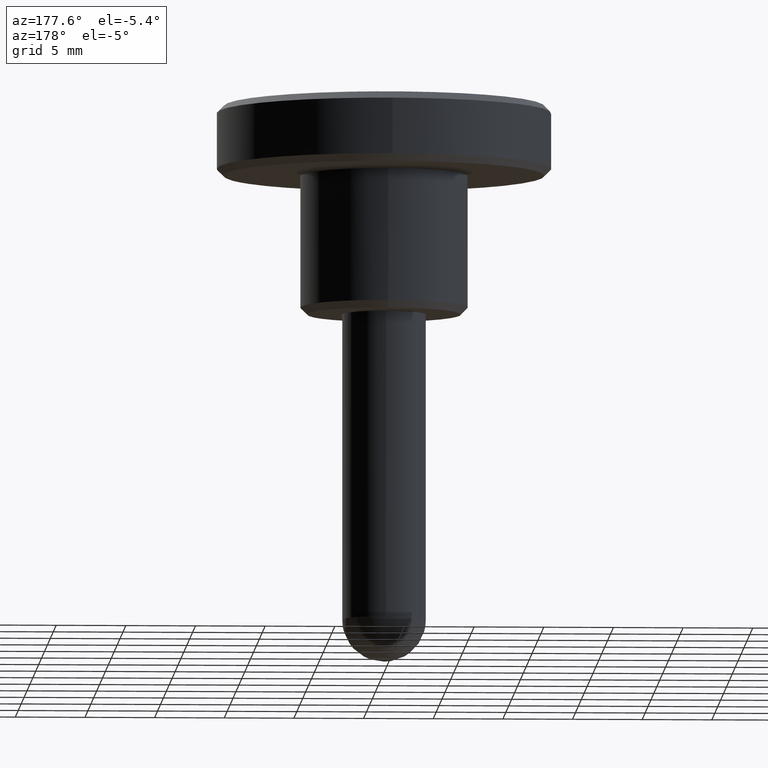
[diagram: clean part render]
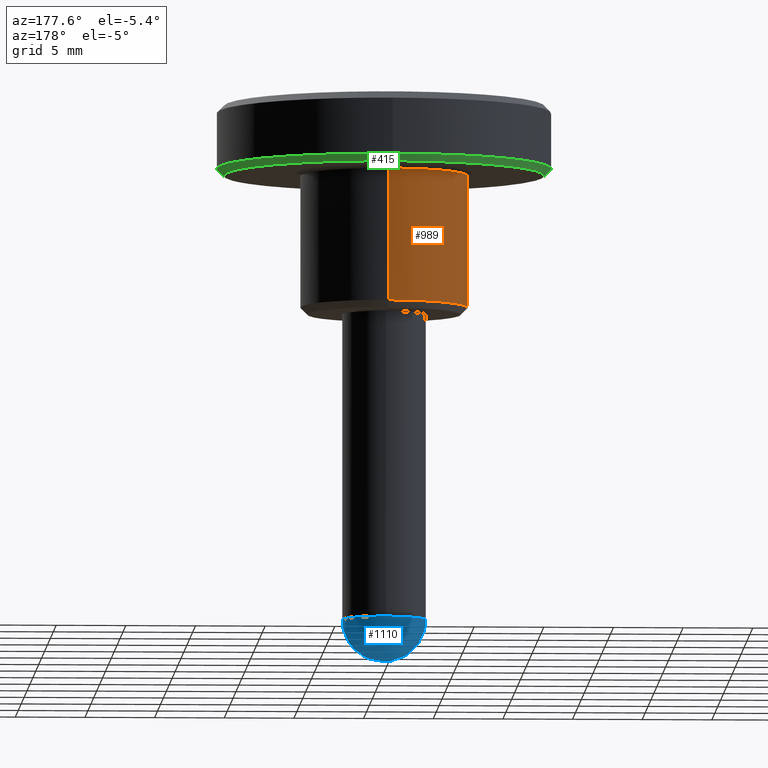
[diagram: same view with three faces highlighted in distinct colors, each labeled with its STEP entity id]
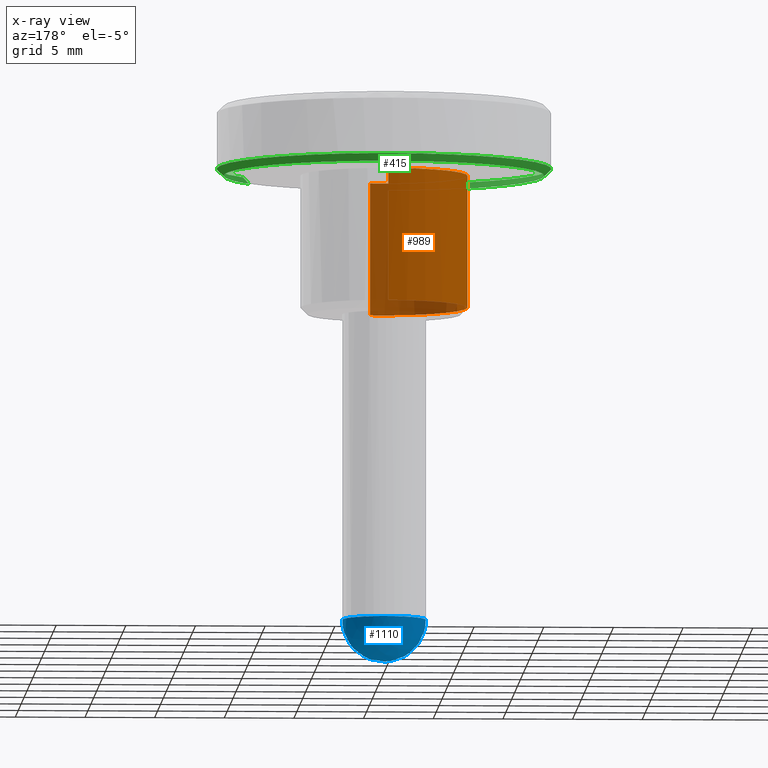
[diagram: x-ray of the same camera — body ghosted, the three highlighted faces saturated]
A machine part, auxiliary view with three faces highlighted in distinct colors.
The next image is the same camera in x-ray (body ghosted, the three faces saturated) — at least one of them is partly hidden behind the body in this view.
Their STEP definitions:

[orange] entity #989 — the highlighted face is a freeform B-spline surface patch.
#498=CARTESIAN_POINT('',(-2.425292591940817,-5.487982857434176,0.500000000001144));
#499=VERTEX_POINT('',#498);
#500=CARTESIAN_POINT('',(0.744759686369103,-5.953598324499980,0.499999999999945));
#501=VERTEX_POINT('',#500);
#502=CARTESIAN_POINT('',(-2.425292591940817,-5.487982857434177,0.500000000001144));
#503=CARTESIAN_POINT('',(-1.266693703526238,-6.0,0.499999999999945));
#504=CARTESIAN_POINT('',(0.0,-6.0,0.499999999999945));
#505=CARTESIAN_POINT('',(0.373825353413298,-6.0,0.499999999999945));
#506=CARTESIAN_POINT('',(0.744759686369103,-5.953598324499981,0.499999999999945));
#514=(BOUNDED_CURVE()B_SPLINE_CURVE(2,(#502,#503,#504,#505,#506),.UNSPECIFIED.,.F.,.U.)B_SPLINE_CURVE_WITH_KNOTS((3,2,3),(0.181361578459189,0.250000000000000,0.271473693119241),.UNSPECIFIED.)CURVE()GEOMETRIC_REPRESENTATION_ITEM()RATIONAL_B_SPLINE_CURVE((0.883326595751099,0.919585087122549,1.0,0.974842003609973,0.954005887971741))REPRESENTATION_ITEM(''));
#515=EDGE_CURVE('',#499,#501,#514,.T.);
#558=CARTESIAN_POINT('',(-0.052357932302264,5.999771549560601,0.499999999999668));
#559=VERTEX_POINT('',#558);
#616=CARTESIAN_POINT('',(-6.0,0.0,0.499999999999945));
#617=VERTEX_POINT('',#616);
#618=CARTESIAN_POINT('',(-6.0,0.0,0.499999999999945));
#619=CARTESIAN_POINT('',(-6.0,-3.908220015529379,0.499999999999945));
#620=CARTESIAN_POINT('',(-2.425292591940817,-5.487982857434177,0.500000000001144));
#628=(BOUNDED_CURVE()B_SPLINE_CURVE(2,(#618,#619,#620),.UNSPECIFIED.,.F.,.U.)B_SPLINE_CURVE_WITH_KNOTS((3,3),(0.0,0.181361578459189),.UNSPECIFIED.)CURVE()GEOMETRIC_REPRESENTATION_ITEM()RATIONAL_B_SPLINE_CURVE((1.0,0.787521694063999,0.883326595751099))REPRESENTATION_ITEM(''));
#629=EDGE_CURVE('',#617,#499,#628,.T.);
#631=CARTESIAN_POINT('',(-0.052357932302264,5.999771549560601,0.499999999999668));
#632=CARTESIAN_POINT('',(-6.0,5.947868533227037,0.499999999999945));
#633=CARTESIAN_POINT('',(-6.0,0.0,0.499999999999945));
#641=(BOUNDED_CURVE()B_SPLINE_CURVE(2,(#631,#632,#633),.UNSPECIFIED.,.F.,.U.)B_SPLINE_CURVE_WITH_KNOTS((3,3),(0.751539856736231,1.0),.UNSPECIFIED.)CURVE()GEOMETRIC_REPRESENTATION_ITEM()RATIONAL_B_SPLINE_CURVE((0.996414115114476,0.708910835570492,1.0))REPRESENTATION_ITEM(''));
#642=EDGE_CURVE('',#559,#617,#641,.T.);
#883=CARTESIAN_POINT('',(-0.052357672670020,5.999771551826802,10.0));
#884=VERTEX_POINT('',#883);
#885=CARTESIAN_POINT('',(-0.052357932302264,5.999771549560601,0.499999999999668));
#886=CARTESIAN_POINT('',(-0.052357672670020,5.999771551826802,10.0));
#887=QUASI_UNIFORM_CURVE('',1,(#885,#886),.UNSPECIFIED.,.F.,.U.);
#888=EDGE_CURVE('',#559,#884,#887,.T.);
#907=CARTESIAN_POINT('',(0.744768012501258,-5.953597282950446,10.0));
#908=VERTEX_POINT('',#907);
#922=CARTESIAN_POINT('',(0.744759686369103,-5.953598324499980,0.499999999999945));
#923=CARTESIAN_POINT('',(0.744768012501258,-5.953597282950446,10.0));
#924=QUASI_UNIFORM_CURVE('',1,(#922,#923),.UNSPECIFIED.,.F.,.U.);
#925=EDGE_CURVE('',#501,#908,#924,.T.);
#930=CARTESIAN_POINT('',(-0.052359212990243,5.999771538385026,0.262499999999943));
#931=CARTESIAN_POINT('',(-6.052130751375269,5.947412325394783,0.262499999999943));
#932=CARTESIAN_POINT('',(-5.999771538385026,-0.052359212990243,0.262499999999943));
#933=CARTESIAN_POINT('',(-5.947412325394783,-6.052130751375269,0.262499999999943));
#934=CARTESIAN_POINT('',(0.052359212990243,-5.999771538385026,0.262499999999943));
#935=CARTESIAN_POINT('',(0.399900953749042,-5.996738587561654,0.262499999999943));
#936=CARTESIAN_POINT('',(0.744768012478976,-5.953597282953231,0.262499999999943));
#937=CARTESIAN_POINT('',(-0.052359212990243,5.999771538385026,10.243437500000001));
#938=CARTESIAN_POINT('',(-6.052130751375269,5.947412325394783,10.243437500000004));
#939=CARTESIAN_POINT('',(-5.999771538385026,-0.052359212990243,10.243437500000001));
#940=CARTESIAN_POINT('',(-5.947412325394783,-6.052130751375269,10.243437500000004));
#941=CARTESIAN_POINT('',(0.052359212990243,-5.999771538385026,10.243437500000001));
#942=CARTESIAN_POINT('',(0.399900953749042,-5.996738587561654,10.243437500000002));
#943=CARTESIAN_POINT('',(0.744768012478976,-5.953597282953231,10.243437500000006));
#951=(BOUNDED_SURFACE()B_SPLINE_SURFACE(2,1,((#930,#937),(#931,#938),(#932,#939),(#933,#940),(#934,#941),(#935,#942),(#936,#943)),.UNSPECIFIED.,.F.,.F.,.U.)B_SPLINE_SURFACE_WITH_KNOTS((3,2,2,3),(2,2),(0.0,9.941125496954278,19.882250993908560,20.677541033664902),(0.0,9.980937500000064),.UNSPECIFIED.)GEOMETRIC_REPRESENTATION_ITEM()RATIONAL_B_SPLINE_SURFACE(((1.0,1.0),(0.707106781186548,0.707106781186548),(1.0,1.0),(0.707106781186548,0.707106781186548),(1.0,1.0),(0.976568542494924,0.976568542494924),(0.956886118190660,0.956886118190660)))REPRESENTATION_ITEM('')SURFACE());
#952=ORIENTED_EDGE('',*,*,#629,.T.);
#953=ORIENTED_EDGE('',*,*,#515,.T.);
#954=ORIENTED_EDGE('',*,*,#925,.T.);
#955=CARTESIAN_POINT('',(-6.0,0.0,10.0));
#956=VERTEX_POINT('',#955);
#957=CARTESIAN_POINT('',(0.744768012501258,-5.953597282950446,10.0));
#958=CARTESIAN_POINT('',(0.373829565223509,-6.0,9.999999999999998));
#959=CARTESIAN_POINT('',(0.0,-6.0,10.0));
#960=CARTESIAN_POINT('',(-6.0,-6.0,10.000000000000002));
#961=CARTESIAN_POINT('',(-6.0,0.0,10.0));
#969=(BOUNDED_CURVE()B_SPLINE_CURVE(2,(#957,#958,#959,#960,#961),.UNSPECIFIED.,.F.,.U.)B_SPLINE_CURVE_WITH_KNOTS((3,2,3),(0.728526071028036,0.750000000000000,1.0),.UNSPECIFIED.)CURVE()GEOMETRIC_REPRESENTATION_ITEM()RATIONAL_B_SPLINE_CURVE((0.954005430272269,0.974841727291321,1.0,0.707106781186548,1.0))REPRESENTATION_ITEM(''));
#970=EDGE_CURVE('',#908,#956,#969,.T.);
#971=ORIENTED_EDGE('',*,*,#970,.T.);
#972=CARTESIAN_POINT('',(-6.0,0.0,10.0));
#973=CARTESIAN_POINT('',(-6.0,5.947868790623056,9.999999999999998));
#974=CARTESIAN_POINT('',(-0.052357672670020,5.999771551826802,10.0));
#982=(BOUNDED_CURVE()B_SPLINE_CURVE(2,(#972,#973,#974),.UNSPECIFIED.,.F.,.U.)B_SPLINE_CURVE_WITH_KNOTS((3,3),(0.0,0.248460150886118),.UNSPECIFIED.)CURVE()GEOMETRIC_REPRESENTATION_ITEM()RATIONAL_B_SPLINE_CURVE((1.0,0.708910826640356,0.996414132754732))REPRESENTATION_ITEM(''));
#983=EDGE_CURVE('',#956,#884,#982,.T.);
#984=ORIENTED_EDGE('',*,*,#983,.T.);
#985=ORIENTED_EDGE('',*,*,#888,.F.);
#986=ORIENTED_EDGE('',*,*,#642,.T.);
#987=EDGE_LOOP('',(#952,#953,#954,#971,#984,#985,#986));
#988=FACE_OUTER_BOUND('',#987,.T.);
#989=ADVANCED_FACE('',(#988),#951,.T.);

[blue] entity #1110 — the highlighted face is a freeform B-spline surface patch.
#695=CARTESIAN_POINT('',(0.372384006280671,-2.976798641471465,-22.0));
#696=VERTEX_POINT('',#695);
#697=CARTESIAN_POINT('',(3.0,0.0,-22.0));
#698=VERTEX_POINT('',#697);
#699=CARTESIAN_POINT('',(0.372384006280671,-2.976798641471465,-21.999999999999996));
#700=CARTESIAN_POINT('',(3.0,-2.648095800376845,-22.000000000000004));
#701=CARTESIAN_POINT('',(3.0,0.0,-22.0));
#709=(BOUNDED_CURVE()B_SPLINE_CURVE(2,(#699,#700,#701),.UNSPECIFIED.,.F.,.U.)B_SPLINE_CURVE_WITH_KNOTS((3,3),(0.771473928975367,1.0),.UNSPECIFIED.)CURVE()GEOMETRIC_REPRESENTATION_ITEM()RATIONAL_B_SPLINE_CURVE((0.954005430265663,0.732265053899215,1.0))REPRESENTATION_ITEM(''));
#710=EDGE_CURVE('',#696,#698,#709,.T.);
#712=CARTESIAN_POINT('',(-0.026179606549015,2.999885769192043,-22.0));
#713=VERTEX_POINT('',#712);
#714=CARTESIAN_POINT('',(3.0,0.0,-22.0));
#715=CARTESIAN_POINT('',(3.0,3.0,-22.000000000000007));
#716=CARTESIAN_POINT('',(0.0,3.0,-22.0));
#717=CARTESIAN_POINT('',(-0.013090052516001,3.0,-22.0));
#718=CARTESIAN_POINT('',(-0.026179606549015,2.999885769192043,-22.0));
#726=(BOUNDED_CURVE()B_SPLINE_CURVE(2,(#714,#715,#716,#717,#718),.UNSPECIFIED.,.F.,.U.)B_SPLINE_CURVE_WITH_KNOTS((3,2,3),(0.0,0.250000000000000,0.251539894341316),.UNSPECIFIED.)CURVE()GEOMETRIC_REPRESENTATION_ITEM()RATIONAL_B_SPLINE_CURVE((1.0,0.707106781186548,1.0,0.998195901558957,0.996414028085759))REPRESENTATION_ITEM(''));
#727=EDGE_CURVE('',#698,#713,#726,.T.);
#798=CARTESIAN_POINT('',(-3.0,0.0,-22.0));
#799=VERTEX_POINT('',#798);
#800=CARTESIAN_POINT('',(-3.0,0.0,-22.0));
#801=CARTESIAN_POINT('',(-3.0,-3.0,-22.000000000000007));
#802=CARTESIAN_POINT('',(0.0,-3.0,-22.0));
#803=CARTESIAN_POINT('',(0.186914782642149,-3.000000000000000,-22.000000000000004));
#804=CARTESIAN_POINT('',(0.372384006280671,-2.976798641471464,-22.000000000000004));
#812=(BOUNDED_CURVE()B_SPLINE_CURVE(2,(#800,#801,#802,#803,#804),.UNSPECIFIED.,.F.,.U.)B_SPLINE_CURVE_WITH_KNOTS((3,2,3),(0.500000000000000,0.750000000000000,0.771473928975368),.UNSPECIFIED.)CURVE()GEOMETRIC_REPRESENTATION_ITEM()RATIONAL_B_SPLINE_CURVE((1.0,0.707106781186548,1.0,0.974841727287333,0.954005430265663))REPRESENTATION_ITEM(''));
#813=EDGE_CURVE('',#799,#696,#812,.T.);
#847=CARTESIAN_POINT('',(-0.026179606549015,2.999885769192043,-21.999999999999996));
#848=CARTESIAN_POINT('',(-3.000000000000001,2.973933631678077,-21.999999999999996));
#849=CARTESIAN_POINT('',(-3.0,0.0,-22.0));
#857=(BOUNDED_CURVE()B_SPLINE_CURVE(2,(#847,#848,#849),.UNSPECIFIED.,.F.,.U.)B_SPLINE_CURVE_WITH_KNOTS((3,3),(0.251539894341316,0.500000000000000),.UNSPECIFIED.)CURVE()GEOMETRIC_REPRESENTATION_ITEM()RATIONAL_B_SPLINE_CURVE((0.996414028085759,0.708910879627590,1.0))REPRESENTATION_ITEM(''));
#858=EDGE_CURVE('',#713,#799,#857,.T.);
#1060=CARTESIAN_POINT('',(-1.966516590319030,1.966516590319032,-20.874999999999989));
#1061=CARTESIAN_POINT('',(-1.780996157270066,2.374661543026756,-21.264150943396217));
#1062=CARTESIAN_POINT('',(-0.749149177264393,2.996596709057575,-21.857142857142851));
#1063=CARTESIAN_POINT('',(0.749149177264394,2.996596709057575,-21.857142857142851));
#1064=CARTESIAN_POINT('',(1.780996157270068,2.374661543026756,-21.264150943396224));
#1065=CARTESIAN_POINT('',(1.966516590319033,1.966516590319032,-20.874999999999993));
#1066=CARTESIAN_POINT('',(-2.374661543026755,1.780996157270067,-21.264150943396217));
#1067=CARTESIAN_POINT('',(-2.247447531793181,2.247447531793181,-21.857142857142847));
#1068=CARTESIAN_POINT('',(-1.014976304680793,3.044928914042377,-22.870967741935477));
#1069=CARTESIAN_POINT('',(1.014976304680791,3.044928914042377,-22.870967741935477));
#1070=CARTESIAN_POINT('',(2.247447531793181,2.247447531793181,-21.857142857142851));
#1071=CARTESIAN_POINT('',(2.374661543026757,1.780996157270067,-21.264150943396224));
#1072=CARTESIAN_POINT('',(-2.996596709057575,0.749149177264394,-21.857142857142847));
#1073=CARTESIAN_POINT('',(-3.044928914042377,1.014976304680792,-22.870967741935473));
#1074=CARTESIAN_POINT('',(-1.573213272255234,1.573213272255230,-25.0));
#1075=CARTESIAN_POINT('',(1.573213272255226,1.573213272255230,-25.0));
#1076=CARTESIAN_POINT('',(3.044928914042375,1.014976304680792,-22.870967741935477));
#1077=CARTESIAN_POINT('',(2.996596709057575,0.749149177264394,-21.857142857142851));
#1078=CARTESIAN_POINT('',(-2.996596709057575,-0.749149177264394,-21.857142857142847));
#1079=CARTESIAN_POINT('',(-3.044928914042377,-1.014976304680792,-22.870967741935473));
#1080=CARTESIAN_POINT('',(-1.573213272255234,-1.573213272255230,-25.0));
#1081=CARTESIAN_POINT('',(1.573213272255226,-1.573213272255230,-25.0));
#1082=CARTESIAN_POINT('',(3.044928914042375,-1.014976304680792,-22.870967741935477));
#1083=CARTESIAN_POINT('',(2.996596709057575,-0.749149177264394,-21.857142857142851));
#1084=CARTESIAN_POINT('',(-2.374661543026755,-1.780996157270067,-21.264150943396217));
#1085=CARTESIAN_POINT('',(-2.247447531793181,-2.247447531793181,-21.857142857142847));
#1086=CARTESIAN_POINT('',(-1.014976304680793,-3.044928914042377,-22.870967741935477));
#1087=CARTESIAN_POINT('',(1.014976304680791,-3.044928914042377,-22.870967741935477));
#1088=CARTESIAN_POINT('',(2.247447531793181,-2.247447531793181,-21.857142857142851));
#1089=CARTESIAN_POINT('',(2.374661543026757,-1.780996157270067,-21.264150943396224));
#1090=CARTESIAN_POINT('',(-1.966516590319030,-1.966516590319032,-20.874999999999989));
#1091=CARTESIAN_POINT('',(-1.780996157270066,-2.374661543026756,-21.264150943396217));
#1092=CARTESIAN_POINT('',(-0.749149177264393,-2.996596709057575,-21.857142857142851));
#1093=CARTESIAN_POINT('',(0.749149177264394,-2.996596709057575,-21.857142857142851));
#1094=CARTESIAN_POINT('',(1.780996157270068,-2.374661543026756,-21.264150943396224));
#1095=CARTESIAN_POINT('',(1.966516590319033,-1.966516590319032,-20.874999999999993));
#1103=(BOUNDED_SURFACE()B_SPLINE_SURFACE(2,2,((#1060,#1066,#1072,#1078,#1084,#1090),(#1061,#1067,#1073,#1079,#1085,#1091),(#1062,#1068,#1074,#1080,#1086,#1092),(#1063,#1069,#1075,#1081,#1087,#1093),(#1064,#1070,#1076,#1082,#1088,#1094),(#1065,#1071,#1077,#1083,#1089,#1095)),.UNSPECIFIED.,.F.,.F.,.U.)B_SPLINE_SURFACE_WITH_KNOTS((3,1,1,1,3),(3,1,1,1,3),(0.0,2.766089269899302,5.532178539798604,8.298267809697906,11.064357079597210),(0.0,2.766089269899300,5.532178539798601,8.298267809697901,11.064357079597199),.UNSPECIFIED.)GEOMETRIC_REPRESENTATION_ITEM()RATIONAL_B_SPLINE_SURFACE(((3.200000000000009,2.650000000000007,2.100000000000004,2.100000000000004,2.650000000000007,3.200000000000009),(2.650000000000007,2.100000000000004,1.550000000000002,1.550000000000002,2.100000000000004,2.650000000000007),(2.100000000000004,1.550000000000002,1.0,1.0,1.550000000000002,2.100000000000004),(2.100000000000004,1.550000000000002,1.0,1.0,1.550000000000002,2.100000000000004),(2.650000000000007,2.100000000000004,1.550000000000002,1.550000000000002,2.100000000000004,2.650000000000007),(3.200000000000009,2.650000000000007,2.100000000000004,2.100000000000004,2.650000000000007,3.200000000000009)))REPRESENTATION_ITEM('')SURFACE());
#1104=ORIENTED_EDGE('',*,*,#710,.F.);
#1105=ORIENTED_EDGE('',*,*,#813,.F.);
#1106=ORIENTED_EDGE('',*,*,#858,.F.);
#1107=ORIENTED_EDGE('',*,*,#727,.F.);
#1108=EDGE_LOOP('',(#1104,#1105,#1106,#1107));
#1109=FACE_OUTER_BOUND('',#1108,.T.);
#1110=ADVANCED_FACE('',(#1109),#1103,.T.);

[green] entity #415 — the highlighted face is a freeform B-spline surface patch.
#260=CARTESIAN_POINT('',(9.406724469765697,-6.593647776452057,9.987500000000001));
#261=CARTESIAN_POINT('',(11.519179152623552,-3.579947343821037,9.987499999999999));
#262=CARTESIAN_POINT('',(11.487062591199660,0.100246076537570,9.987499999999999));
#263=CARTESIAN_POINT('',(11.386816514662092,11.587308667737231,9.987499999999999));
#264=CARTESIAN_POINT('',(-0.100246076537570,11.487062591199660,9.987499999999999));
#265=CARTESIAN_POINT('',(-11.587308667737231,11.386816514662092,9.987499999999999));
#266=CARTESIAN_POINT('',(-11.487062591199660,-0.100246076537570,9.987499999999999));
#267=CARTESIAN_POINT('',(-11.386816514662092,-11.587308667737231,9.987499999999999));
#268=CARTESIAN_POINT('',(0.100246076537570,-11.487062591199660,9.987499999999999));
#269=CARTESIAN_POINT('',(9.836885074599064,-6.895169047186953,10.512812500000004));
#270=CARTESIAN_POINT('',(12.045940310282912,-3.743654946785199,10.512812500000003));
#271=CARTESIAN_POINT('',(12.012355088909260,0.104830234716559,10.512812500000001));
#272=CARTESIAN_POINT('',(11.907524854192697,12.117185323625815,10.512812500000003));
#273=CARTESIAN_POINT('',(-0.104830234716559,12.012355088909260,10.512812500000001));
#274=CARTESIAN_POINT('',(-12.117185323625815,11.907524854192697,10.512812500000003));
#275=CARTESIAN_POINT('',(-12.012355088909260,-0.104830234716559,10.512812500000001));
#276=CARTESIAN_POINT('',(-11.907524854192697,-12.117185323625815,10.512812500000003));
#277=CARTESIAN_POINT('',(0.104830234716559,-12.012355088909260,10.512812500000001));
#285=(BOUNDED_SURFACE()B_SPLINE_SURFACE(2,1,((#260,#269),(#261,#270),(#262,#271),(#263,#272),(#264,#273),(#265,#274),(#266,#275),(#267,#276),(#268,#277)),.UNSPECIFIED.,.F.,.F.,.U.)B_SPLINE_SURFACE_WITH_KNOTS((3,2,2,2,3),(2,2),(0.0,7.961391775592033,27.864871214572119,47.768350653552197,67.671830092532289),(0.0,1.0),.UNSPECIFIED.)GEOMETRIC_REPRESENTATION_ITEM()RATIONAL_B_SPLINE_SURFACE(((0.859411254969543,0.859411254969543),(0.882842712474619,0.882842712474619),(1.0,1.0),(0.707106781186548,0.707106781186548),(1.0,1.0),(0.707106781186548,0.707106781186548),(1.0,1.0),(0.707106781186548,0.707106781186548),(1.0,1.0)))REPRESENTATION_ITEM('')SURFACE());
#286=CARTESIAN_POINT('',(11.500000000000000,0.0,10.0));
#287=VERTEX_POINT('',#286);
#288=CARTESIAN_POINT('',(9.416960296167627,-6.600822583619035,10.000000000000551));
#289=VERTEX_POINT('',#288);
#290=CARTESIAN_POINT('',(11.500000000000000,0.0,10.0));
#291=CARTESIAN_POINT('',(11.499999999999998,-3.629086570751550,10.0));
#292=CARTESIAN_POINT('',(9.416960296167627,-6.600822583619035,10.000000000000551));
#300=(BOUNDED_CURVE()B_SPLINE_CURVE(2,(#290,#291,#292),.UNSPECIFIED.,.F.,.U.)B_SPLINE_CURVE_WITH_KNOTS((3,3),(0.0,0.098673726203213),.UNSPECIFIED.)CURVE()GEOMETRIC_REPRESENTATION_ITEM()RATIONAL_B_SPLINE_CURVE((1.0,0.884396538880094,0.860049271925704))REPRESENTATION_ITEM(''));
#301=EDGE_CURVE('',#287,#289,#300,.T.);
#302=ORIENTED_EDGE('',*,*,#301,.F.);
#303=CARTESIAN_POINT('',(-11.500000000000000,0.0,10.0));
#304=VERTEX_POINT('',#303);
#305=CARTESIAN_POINT('',(-11.500000000000000,0.0,10.0));
#306=CARTESIAN_POINT('',(-11.500000000000000,11.500000000000000,10.000000000000002));
#307=CARTESIAN_POINT('',(0.0,11.500000000000000,10.0));
#308=CARTESIAN_POINT('',(11.500000000000000,11.500000000000000,10.000000000000002));
#309=CARTESIAN_POINT('',(11.500000000000000,0.0,10.0));
#317=(BOUNDED_CURVE()B_SPLINE_CURVE(2,(#305,#306,#307,#308,#309),.UNSPECIFIED.,.F.,.U.)B_SPLINE_CURVE_WITH_KNOTS((3,2,3),(0.500000000000000,0.750000000000000,1.0),.UNSPECIFIED.)CURVE()GEOMETRIC_REPRESENTATION_ITEM()RATIONAL_B_SPLINE_CURVE((1.0,0.707106781186548,1.0,0.707106781186548,1.0))REPRESENTATION_ITEM(''));
#318=EDGE_CURVE('',#304,#287,#317,.T.);
#319=ORIENTED_EDGE('',*,*,#318,.F.);
#320=CARTESIAN_POINT('',(0.100355158271585,-11.499562115243091,10.000000000005480));
#321=VERTEX_POINT('',#320);
#322=CARTESIAN_POINT('',(0.100355158271585,-11.499562115243096,10.000000000005475));
#323=CARTESIAN_POINT('',(0.050178534478308,-11.500000000000000,10.0));
#324=CARTESIAN_POINT('',(0.0,-11.500000000000000,10.0));
#325=CARTESIAN_POINT('',(-11.500000000000000,-11.500000000000000,10.000000000000002));
#326=CARTESIAN_POINT('',(-11.500000000000000,0.0,10.0));
#334=(BOUNDED_CURVE()B_SPLINE_CURVE(2,(#322,#323,#324,#325,#326),.UNSPECIFIED.,.F.,.U.)B_SPLINE_CURVE_WITH_KNOTS((3,2,3),(0.248460105663780,0.250000000000000,0.500000000000000),.UNSPECIFIED.)CURVE()GEOMETRIC_REPRESENTATION_ITEM()RATIONAL_B_SPLINE_CURVE((0.996414028097553,0.998195901564928,1.0,0.707106781186548,1.0))REPRESENTATION_ITEM(''));
#335=EDGE_CURVE('',#321,#304,#334,.T.);
#336=ORIENTED_EDGE('',*,*,#335,.F.);
#337=CARTESIAN_POINT('',(0.104718425980816,-11.999543076770079,10.500000000000060));
#338=VERTEX_POINT('',#337);
#339=CARTESIAN_POINT('',(0.100355158271585,-11.499562115243091,10.000000000005480));
#340=CARTESIAN_POINT('',(0.104718425980816,-11.999543076770079,10.500000000000060));
#341=QUASI_UNIFORM_CURVE('',1,(#339,#340),.UNSPECIFIED.,.F.,.U.);
#342=EDGE_CURVE('',#321,#338,#341,.T.);
#343=ORIENTED_EDGE('',*,*,#342,.T.);
#344=CARTESIAN_POINT('',(-12.0,0.0,10.500000000000000));
#345=VERTEX_POINT('',#344);
#346=CARTESIAN_POINT('',(-12.0,0.0,10.500000000000000));
#347=CARTESIAN_POINT('',(-12.0,-12.0,10.500000000000002));
#348=CARTESIAN_POINT('',(0.0,-12.0,10.500000000000000));
#349=CARTESIAN_POINT('',(0.052360209848746,-11.999999999999998,10.500000000000002));
#350=CARTESIAN_POINT('',(0.104718425980816,-11.999543076770085,10.500000000000064));
#358=(BOUNDED_CURVE()B_SPLINE_CURVE(2,(#346,#347,#348,#349,#350),.UNSPECIFIED.,.F.,.U.)B_SPLINE_CURVE_WITH_KNOTS((3,2,3),(0.0,0.250000000000000,0.251539894334997),.UNSPECIFIED.)CURVE()GEOMETRIC_REPRESENTATION_ITEM()RATIONAL_B_SPLINE_CURVE((1.0,0.707106781186548,1.0,0.998195901566361,0.996414028100383))REPRESENTATION_ITEM(''));
#359=EDGE_CURVE('',#345,#338,#358,.T.);
#360=ORIENTED_EDGE('',*,*,#359,.F.);
#361=CARTESIAN_POINT('',(-0.104706701761851,11.999543179074310,10.500000000000000));
#362=VERTEX_POINT('',#361);
#363=CARTESIAN_POINT('',(-0.104706701761851,11.999543179074310,10.499999999999996));
#364=CARTESIAN_POINT('',(-12.0,11.895746150379777,10.500000000000000));
#365=CARTESIAN_POINT('',(-12.0,0.0,10.500000000000000));
#373=(BOUNDED_CURVE()B_SPLINE_CURVE(2,(#363,#364,#365),.UNSPECIFIED.,.F.,.U.)B_SPLINE_CURVE_WITH_KNOTS((3,3),(0.751539722233697,1.0),.UNSPECIFIED.)CURVE()GEOMETRIC_REPRESENTATION_ITEM()RATIONAL_B_SPLINE_CURVE((0.996414426391288,0.708910677990972,1.0))REPRESENTATION_ITEM(''));
#374=EDGE_CURVE('',#362,#345,#373,.T.);
#375=ORIENTED_EDGE('',*,*,#374,.F.);
#376=CARTESIAN_POINT('',(12.0,0.0,10.500000000000000));
#377=VERTEX_POINT('',#376);
#378=CARTESIAN_POINT('',(12.0,0.0,10.500000000000000));
#379=CARTESIAN_POINT('',(12.0,12.0,10.500000000000002));
#380=CARTESIAN_POINT('',(0.0,12.0,10.500000000000000));
#381=CARTESIAN_POINT('',(-0.052354347404331,12.000000000000002,10.500000000000005));
#382=CARTESIAN_POINT('',(-0.104706701761851,11.999543179074310,10.499999999999996));
#390=(BOUNDED_CURVE()B_SPLINE_CURVE(2,(#378,#379,#380,#381,#382),.UNSPECIFIED.,.F.,.U.)B_SPLINE_CURVE_WITH_KNOTS((3,2,3),(0.500000000000000,0.750000000000000,0.751539722233697),.UNSPECIFIED.)CURVE()GEOMETRIC_REPRESENTATION_ITEM()RATIONAL_B_SPLINE_CURVE((1.0,0.707106781186548,1.0,0.998196103195576,0.996414426391288))REPRESENTATION_ITEM(''));
#391=EDGE_CURVE('',#377,#362,#390,.T.);
#392=ORIENTED_EDGE('',*,*,#391,.F.);
#393=CARTESIAN_POINT('',(9.826393352523558,-6.887814869862043,10.500000000000520));
#394=VERTEX_POINT('',#393);
#395=CARTESIAN_POINT('',(9.826393352523558,-6.887814869862043,10.500000000000522));
#396=CARTESIAN_POINT('',(11.999999999999996,-3.786872943391239,10.500000000000000));
#397=CARTESIAN_POINT('',(12.0,0.0,10.500000000000000));
#405=(BOUNDED_CURVE()B_SPLINE_CURVE(2,(#395,#396,#397),.UNSPECIFIED.,.F.,.U.)B_SPLINE_CURVE_WITH_KNOTS((3,3),(0.401326273796825,0.500000000000000),.UNSPECIFIED.)CURVE()GEOMETRIC_REPRESENTATION_ITEM()RATIONAL_B_SPLINE_CURVE((0.860049271925723,0.884396538880139,1.0))REPRESENTATION_ITEM(''));
#406=EDGE_CURVE('',#394,#377,#405,.T.);
#407=ORIENTED_EDGE('',*,*,#406,.F.);
#408=CARTESIAN_POINT('',(9.416960296167627,-6.600822583619035,10.000000000000551));
#409=CARTESIAN_POINT('',(9.826393352523558,-6.887814869862043,10.500000000000520));
#410=QUASI_UNIFORM_CURVE('',1,(#408,#409),.UNSPECIFIED.,.F.,.U.);
#411=EDGE_CURVE('',#289,#394,#410,.T.);
#412=ORIENTED_EDGE('',*,*,#411,.F.);
#413=EDGE_LOOP('',(#302,#319,#336,#343,#360,#375,#392,#407,#412));
#414=FACE_OUTER_BOUND('',#413,.T.);
#415=ADVANCED_FACE('',(#414),#285,.T.);